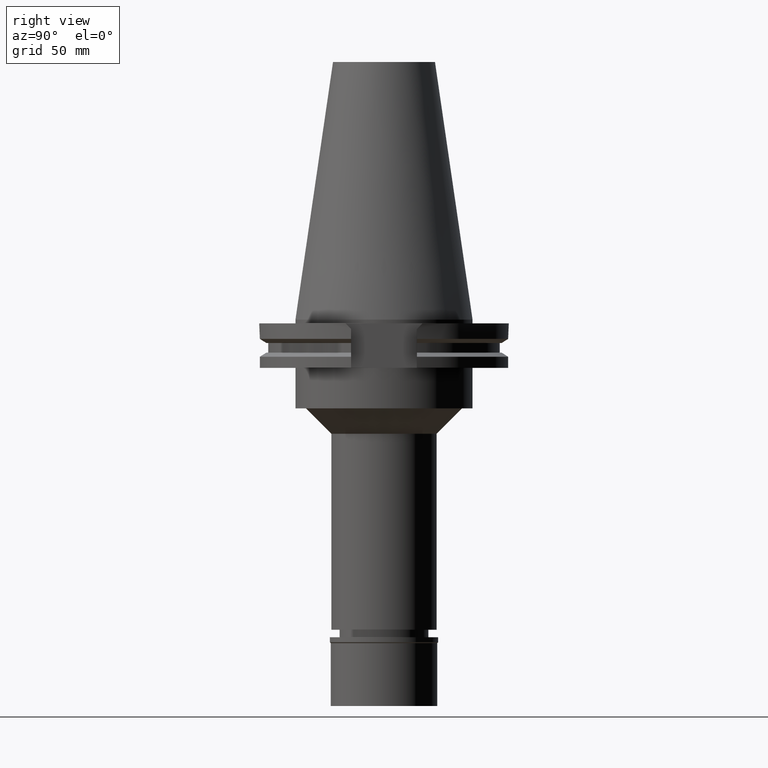
[diagram: clean part render]
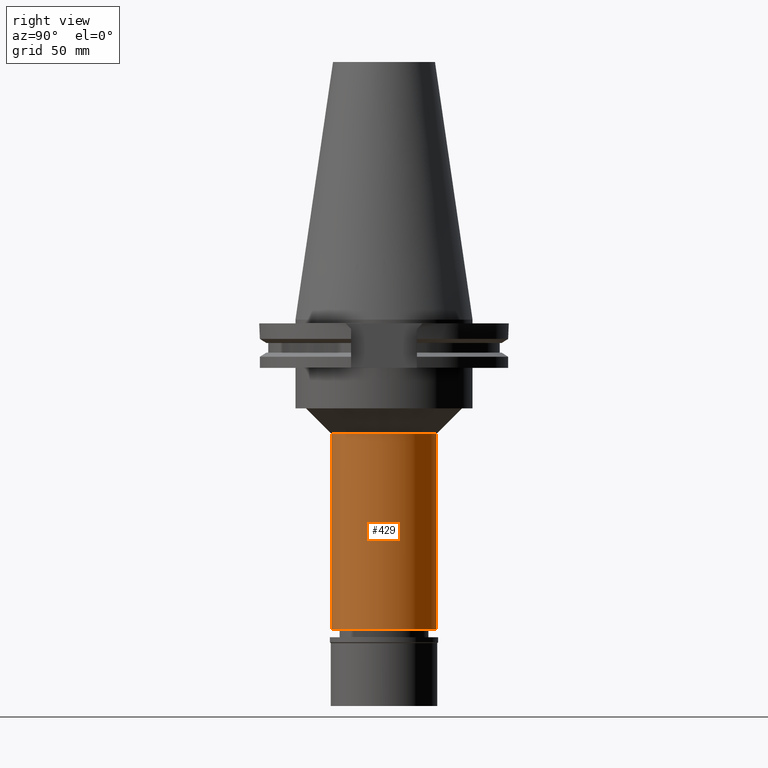
[diagram: same view with one face highlighted and labeled with its STEP entity id]
A machine part, right view. The second image highlights one B-rep face of the part: STEP entity #429.
In plain terms, the highlighted cylindrical surface (partial cylindrical patch) has radius 20.75 mm, axis along (0, 0, -1).
Its self-contained STEP definition (entity closure, byte-faithful):
#25 = DIRECTION ( 'NONE',  ( 0.0000000000000000000, 1.000000000000000000, 0.0000000000000000000 ) ) ;
#260 = AXIS2_PLACEMENT_3D ( 'NONE', #1263, #1529, #25 ) ;
#275 = CARTESIAN_POINT ( 'NONE',  ( 0.0000000000000000000, 2.617682533176999626E-14, -122.3000000000000114 ) ) ;
#278 = FACE_OUTER_BOUND ( 'NONE', #1495, .T. ) ;
#425 = VERTEX_POINT ( 'NONE', #2594 ) ;
#427 = AXIS2_PLACEMENT_3D ( 'NONE', #275, #1150, #2076 ) ;
#429 = ADVANCED_FACE ( 'NONE', ( #278 ), #2823, .T. ) ;
#492 = EDGE_CURVE ( 'NONE', #1713, #425, #2851, .T. ) ;
#587 = AXIS2_PLACEMENT_3D ( 'NONE', #1825, #1508, #2539 ) ;
#608 = CARTESIAN_POINT ( 'NONE',  ( 0.0000000000000000000, 20.75000000000000000, -45.00000000000000000 ) ) ;
#887 = LINE ( 'NONE', #608, #2193 ) ;
#1117 = VERTEX_POINT ( 'NONE', #1556 ) ;
#1150 = DIRECTION ( 'NONE',  ( 0.0000000000000000000, 0.0000000000000000000, 1.000000000000000000 ) ) ;
#1218 = ORIENTED_EDGE ( 'NONE', *, *, #1632, .T. ) ;
#1263 = CARTESIAN_POINT ( 'NONE',  ( 0.0000000000000000000, 0.0000000000000000000, -45.00000000000000000 ) ) ;
#1264 = VERTEX_POINT ( 'NONE', #2872 ) ;
#1423 = DIRECTION ( 'NONE',  ( 0.0000000000000000000, 0.0000000000000000000, -1.000000000000000000 ) ) ;
#1495 = EDGE_LOOP ( 'NONE', ( #3008, #1218, #1507, #2895 ) ) ;
#1507 = ORIENTED_EDGE ( 'NONE', *, *, #492, .T. ) ;
#1508 = DIRECTION ( 'NONE',  ( 0.0000000000000000000, 0.0000000000000000000, -1.000000000000000000 ) ) ;
#1529 = DIRECTION ( 'NONE',  ( 0.0000000000000000000, 0.0000000000000000000, -1.000000000000000000 ) ) ;
#1556 = CARTESIAN_POINT ( 'NONE',  ( 0.0000000000000000000, 20.75000000000000000, -45.00000000000000000 ) ) ;
#1632 = EDGE_CURVE ( 'NONE', #1264, #1713, #2834, .T. ) ;
#1713 = VERTEX_POINT ( 'NONE', #2973 ) ;
#1760 = EDGE_CURVE ( 'NONE', #1117, #425, #887, .T. ) ;
#1761 = VECTOR ( 'NONE', #3146, 1000.000000000000000 ) ;
#1825 = CARTESIAN_POINT ( 'NONE',  ( 0.0000000000000000000, 2.617682533176999626E-14, 113.7500000000000000 ) ) ;
#2065 = EDGE_CURVE ( 'NONE', #1117, #1264, #3269, .T. ) ;
#2076 = DIRECTION ( 'NONE',  ( 0.0000000000000000000, -1.000000000000000000, 0.0000000000000000000 ) ) ;
#2081 = CARTESIAN_POINT ( 'NONE',  ( 0.0000000000000000000, -20.75000000000000000, -45.00000000000000000 ) ) ;
#2193 = VECTOR ( 'NONE', #1423, 1000.000000000000000 ) ;
#2539 = DIRECTION ( 'NONE',  ( 0.0000000000000000000, -1.000000000000000000, 0.0000000000000000000 ) ) ;
#2594 = CARTESIAN_POINT ( 'NONE',  ( 0.0000000000000000000, 20.75000000000000000, -122.3000000000000114 ) ) ;
#2823 = CYLINDRICAL_SURFACE ( 'NONE', #587, 20.75000000000000000 ) ;
#2834 = LINE ( 'NONE', #2081, #1761 ) ;
#2851 = CIRCLE ( 'NONE', #427, 20.75000000000000000 ) ;
#2872 = CARTESIAN_POINT ( 'NONE',  ( 0.0000000000000000000, -20.75000000000000000, -45.00000000000000000 ) ) ;
#2895 = ORIENTED_EDGE ( 'NONE', *, *, #1760, .F. ) ;
#2973 = CARTESIAN_POINT ( 'NONE',  ( 0.0000000000000000000, -20.75000000000000000, -122.3000000000000114 ) ) ;
#3008 = ORIENTED_EDGE ( 'NONE', *, *, #2065, .T. ) ;
#3146 = DIRECTION ( 'NONE',  ( 0.0000000000000000000, 0.0000000000000000000, -1.000000000000000000 ) ) ;
#3269 = CIRCLE ( 'NONE', #260, 20.75000000000000000 ) ;